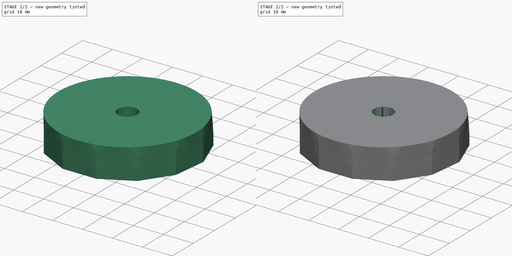
[diagram: build sequence overview — one tinted view per stage of 2, left to right]
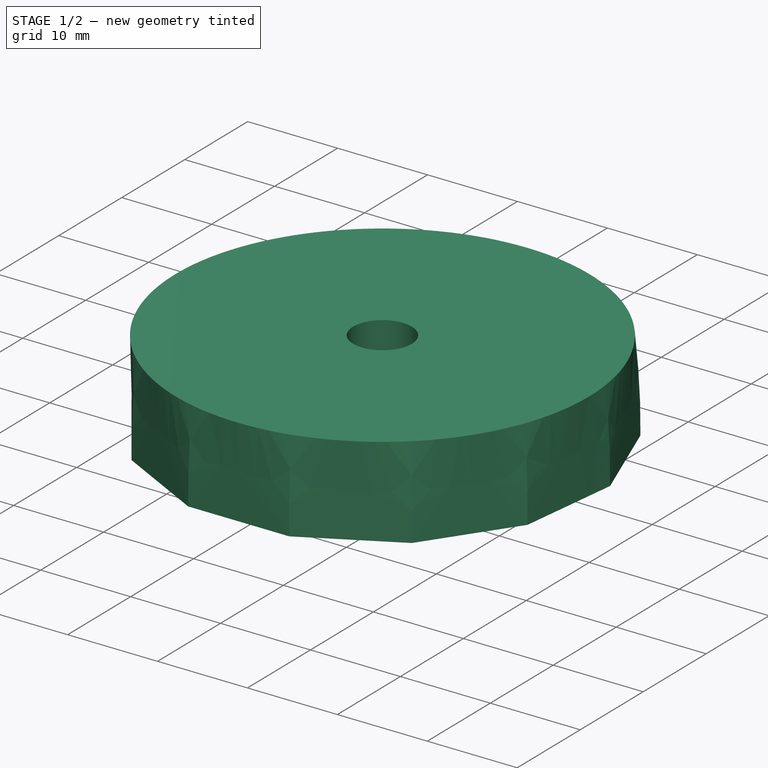
[diagram: stage 1 of 2 — iso view after this stage's code; geometry added in this stage tinted green]
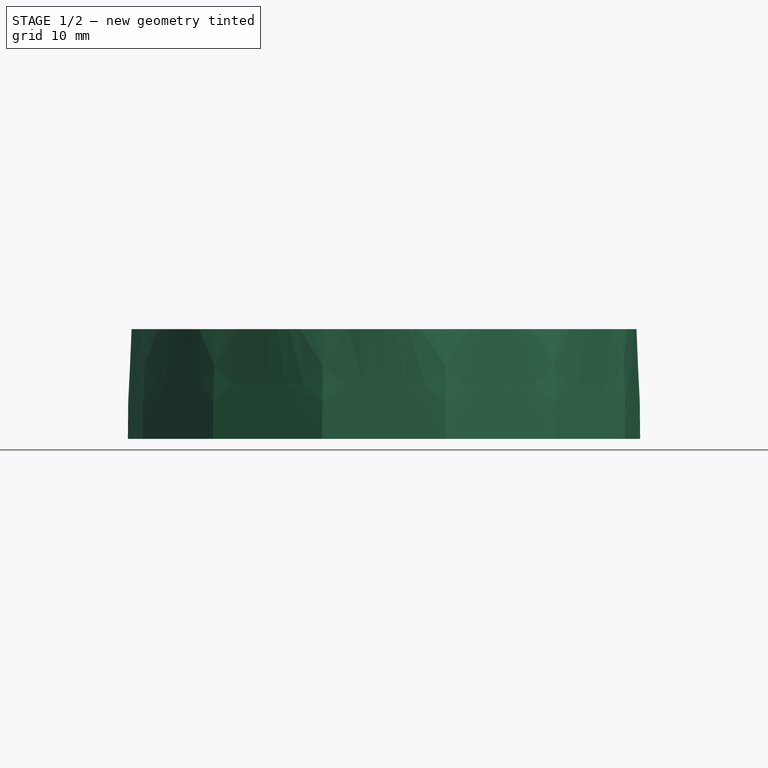
[diagram: stage 1 of 2 — front view after this stage's code; geometry added in this stage tinted green]
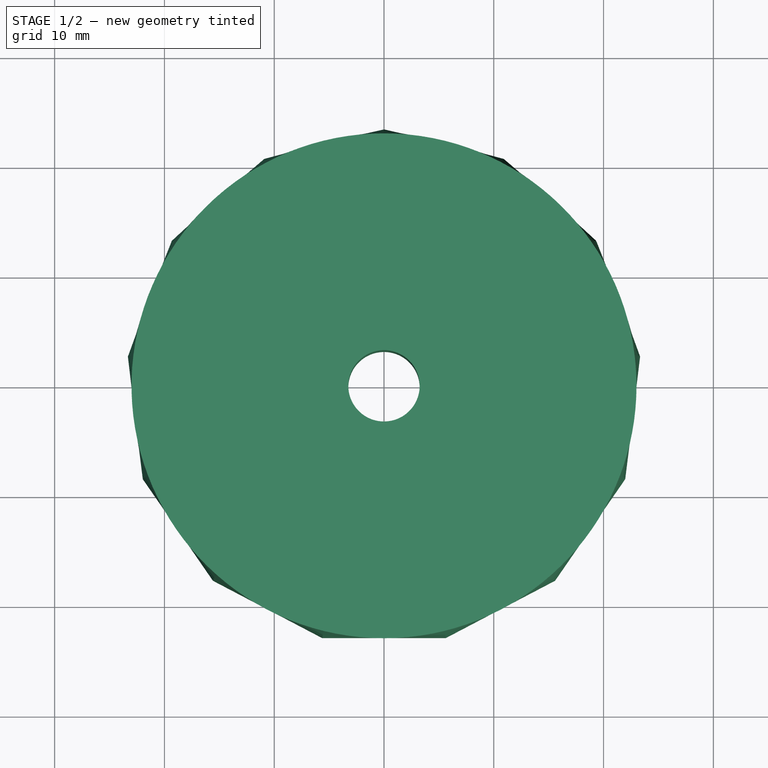
[diagram: stage 1 of 2 — top view after this stage's code; geometry added in this stage tinted green]
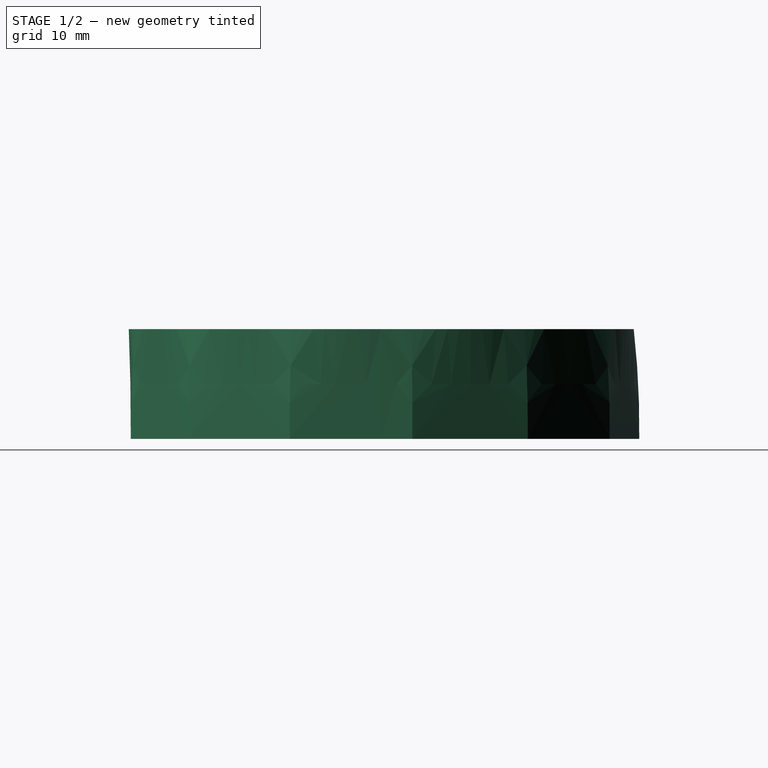
[diagram: stage 1 of 2 — right view after this stage's code; geometry added in this stage tinted green]
FCSTD DOCUMENT  (FreeCAD 0.21R33668 +7 (Git))
Label: volume knob
License: All rights reserved
LicenseURL: http://en.wikipedia.org/wiki/All_rights_reserved
objects: Sketcher::SketchObject×5, PartDesign::Plane×3, PartDesign::AdditiveLoft×1, PartDesign::Pocket×1, PartDesign::Pad×1, PartDesign::PolarPattern×1, PartDesign::Body×1, PartDesign::CoordinateSystem×1, App::Part×1
note: 17 computed .brp shape members not serialized (recipe doc carries the construction recipe); baked Part::Feature solids carry a one-line shape summary decoded from their .brp

FEATURE [Sketcher::SketchObject] Sketch
  FullyConstrained = true
  MapMode = 5
  Support = -> [XY_Plane]
  sketch-geometry (15):
    g0: Circle CenterX=0 CenterY=0 CenterZ=0 NormalX=0 NormalY=0 NormalZ=1 AngleXU=0 Radius=23.5
    g1: LineSegment StartX=0 StartY=23.5 StartZ=0 EndX=-10.921 EndY=20.8082 EndZ=0
    g2: LineSegment StartX=-10.921 StartY=20.8082 StartZ=0 EndX=-19.3401 EndY=13.3495 EndZ=0
    g3: LineSegment StartX=-19.3401 StartY=13.3495 StartZ=0 EndX=-23.3287 EndY=2.83261 EndZ=0
    g4: LineSegment StartX=-23.3287 StartY=2.83261 StartZ=0 EndX=-21.9729 EndY=-8.33321 EndZ=0
    g5: LineSegment StartX=-21.9729 StartY=-8.33321 StartZ=0 EndX=-15.5834 EndY=-17.59 EndZ=0
    g6: LineSegment StartX=-15.5834 StartY=-17.59 StartZ=0 EndX=-5.62392 EndY=-22.8171 EndZ=0
    g7: LineSegment StartX=-5.62392 StartY=-22.8171 StartZ=0 EndX=5.62392 EndY=-22.8171 EndZ=0
    g8: LineSegment StartX=5.62392 StartY=-22.8171 StartZ=0 EndX=15.5834 EndY=-17.59 EndZ=0
    g9: LineSegment StartX=15.5834 StartY=-17.59 StartZ=0 EndX=21.9729 EndY=-8.33321 EndZ=0
    g10: LineSegment StartX=21.9729 StartY=-8.33321 StartZ=0 EndX=23.3287 EndY=2.83261 EndZ=0
    g11: LineSegment StartX=23.3287 StartY=2.83261 StartZ=0 EndX=19.3401 EndY=13.3495 EndZ=0
    g12: LineSegment StartX=19.3401 StartY=13.3495 StartZ=0 EndX=10.921 EndY=20.8082 EndZ=0
    g13: LineSegment StartX=10.921 StartY=20.8082 StartZ=0 EndX=0 EndY=23.5 EndZ=0
    g14: Circle CenterX=0 CenterY=0 CenterZ=0 NormalX=0 NormalY=0 NormalZ=1 AngleXU=0 Radius=23.5
  constraints (32):
    c: Coincident(g0,g-1)
    c: Diameter(g0) = 47
    c: Coincident(g1,g2)
    c: Coincident(g2,g3)
    c: Coincident(g3,g4)
    c: Coincident(g4,g5)
    c: Coincident(g5,g6)
    c: Coincident(g6,g7)
    c: Coincident(g7,g8)
    c: Coincident(g8,g9)
    c: Coincident(g9,g10)
    c: Coincident(g10,g11)
    c: Coincident(g11,g12)
    c: Coincident(g12,g13)
    c: Coincident(g13,g1)
    c: Equal(g1, g2-g13) x12
    c: PointOnObject(g1,g14)
    c: PointOnObject(g2,g14)
    c: PointOnObject(g3,g14)
    c: PointOnObject(g4,g14)
    c: PointOnObject(g5,g14)
    c: PointOnObject(g6,g14)
    c: PointOnObject(g7,g14)
    c: PointOnObject(g8,g14)
    c: PointOnObject(g9,g14)
    c: PointOnObject(g10,g14)
    c: PointOnObject(g11,g14)
    c: PointOnObject(g12,g14)
    c: PointOnObject(g13,g14)
    c: Coincident(g14,g0)
    c: PointOnObject(g13,g0)
    c: PointOnObject(g1,g-2)
FEATURE [PartDesign::Plane] DatumPlane
  AttachmentOffset = pos=(0,0,2) rot=(0,0,1;0rad)
  Length = 60
  MapMode = 5
  Placement = pos=(0,0,2) rot=(0,0,1;0rad)
  ResizeMode = 0
  Support = -> [XY_Plane]
  Width = 60
FEATURE [Sketcher::SketchObject] Sketch001
  FullyConstrained = true
  MapMode = 5
  Placement = pos=(0,0,2) rot=(0,0,1;0rad)
  Support = -> [DatumPlane]
  sketch-geometry (15):
    g0: Circle CenterX=0 CenterY=0 CenterZ=0 NormalX=0 NormalY=0 NormalZ=1 AngleXU=0 Radius=23.5
    g1: LineSegment StartX=0 StartY=23.5 StartZ=0 EndX=-10.921 EndY=20.8082 EndZ=0
    g2: LineSegment StartX=-10.921 StartY=20.8082 StartZ=0 EndX=-19.3401 EndY=13.3495 EndZ=0
    g3: LineSegment StartX=-19.3401 StartY=13.3495 StartZ=0 EndX=-23.3287 EndY=2.83261 EndZ=0
    g4: LineSegment StartX=-23.3287 StartY=2.83261 StartZ=0 EndX=-21.9729 EndY=-8.33321 EndZ=0
    g5: LineSegment StartX=-21.9729 StartY=-8.33321 StartZ=0 EndX=-15.5834 EndY=-17.59 EndZ=0
    g6: LineSegment StartX=-15.5834 StartY=-17.59 StartZ=0 EndX=-5.62392 EndY=-22.8171 EndZ=0
    g7: LineSegment StartX=-5.62392 StartY=-22.8171 StartZ=0 EndX=5.62392 EndY=-22.8171 EndZ=0
    g8: LineSegment StartX=5.62392 StartY=-22.8171 StartZ=0 EndX=15.5834 EndY=-17.59 EndZ=0
    g9: LineSegment StartX=15.5834 StartY=-17.59 StartZ=0 EndX=21.9729 EndY=-8.33321 EndZ=0
    g10: LineSegment StartX=21.9729 StartY=-8.33321 StartZ=0 EndX=23.3287 EndY=2.83261 EndZ=0
    g11: LineSegment StartX=23.3287 StartY=2.83261 StartZ=0 EndX=19.3401 EndY=13.3495 EndZ=0
    g12: LineSegment StartX=19.3401 StartY=13.3495 StartZ=0 EndX=10.921 EndY=20.8082 EndZ=0
    g13: LineSegment StartX=10.921 StartY=20.8082 StartZ=0 EndX=0 EndY=23.5 EndZ=0
    g14: Circle CenterX=0 CenterY=0 CenterZ=0 NormalX=0 NormalY=0 NormalZ=1 AngleXU=0 Radius=23.5
  constraints (32):
    c: Coincident(g0,g-1)
    c: Diameter(g0) = 47
    c: Coincident(g1,g2)
    c: Coincident(g2,g3)
    c: Coincident(g3,g4)
    c: Coincident(g4,g5)
    c: Coincident(g5,g6)
    c: Coincident(g6,g7)
    c: Coincident(g7,g8)
    c: Coincident(g8,g9)
    c: Coincident(g9,g10)
    c: Coincident(g10,g11)
    c: Coincident(g11,g12)
    c: Coincident(g12,g13)
    c: Coincident(g13,g1)
    c: Equal(g1, g2-g13) x12
    c: PointOnObject(g1,g14)
    c: PointOnObject(g2,g14)
    c: PointOnObject(g3,g14)
    c: PointOnObject(g4,g14)
    c: PointOnObject(g5,g14)
    c: PointOnObject(g6,g14)
    c: PointOnObject(g7,g14)
    c: PointOnObject(g8,g14)
    c: PointOnObject(g9,g14)
    c: PointOnObject(g10,g14)
    c: PointOnObject(g11,g14)
    c: PointOnObject(g12,g14)
    c: PointOnObject(g13,g14)
    c: Coincident(g14,g-1)
    c: PointOnObject(g13,g0)
    c: PointOnObject(g1,g-2)
FEATURE [PartDesign::Plane] DatumPlane001
  AttachmentOffset = pos=(0,0,10) rot=(0,0,1;0rad)
  Length = 60
  MapMode = 5
  Placement = pos=(0,0,10) rot=(0,0,1;0rad)
  ResizeMode = 0
  Support = -> [XY_Plane]
  Width = 60
FEATURE [Sketcher::SketchObject] Sketch002
  FullyConstrained = true
  MapMode = 5
  Placement = pos=(0,0,10) rot=(0,0,1;0rad)
  Support = -> [DatumPlane001]
  sketch-geometry (1):
    g0: Circle CenterX=0 CenterY=0 CenterZ=0 NormalX=0 NormalY=0 NormalZ=1 AngleXU=0 Radius=23
  constraints (2):
    c: Coincident(g0,g-1)
    c: Diameter(g0) = 46
FEATURE [PartDesign::AdditiveLoft] AdditiveLoft
  Closed = false
  Profile = -> Sketch
  Ruled = false
  Sections = -> [Sketch001,Sketch002]
FEATURE [Sketcher::SketchObject] Sketch003
  FullyConstrained = true
  MapMode = 5
  Support = -> [XY_Plane]
  sketch-geometry (1):
    g0: Circle CenterX=0 CenterY=0 CenterZ=0 NormalX=0 NormalY=0 NormalZ=1 AngleXU=0 Radius=3.25
  constraints (2):
    c: Coincident(g0,g-1)
    c: Diameter(g0) = 6.5
FEATURE [PartDesign::Pocket] Pocket
  BaseFeature = -> AdditiveLoft
  Direction = (0,0,-1)
  Length = 10
  Length2 = 100
  Profile = -> Sketch003
  ReferenceAxis = -> Sketch003 [N_Axis]
  Reversed = true
  Type = 0
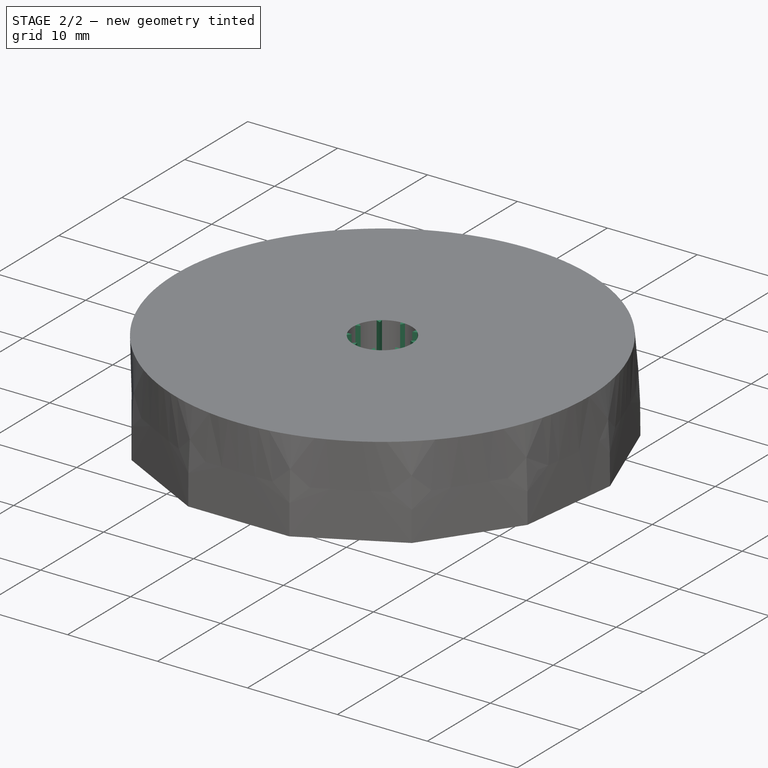
[diagram: stage 2 of 2 — iso view after this stage's code; geometry added in this stage tinted green]
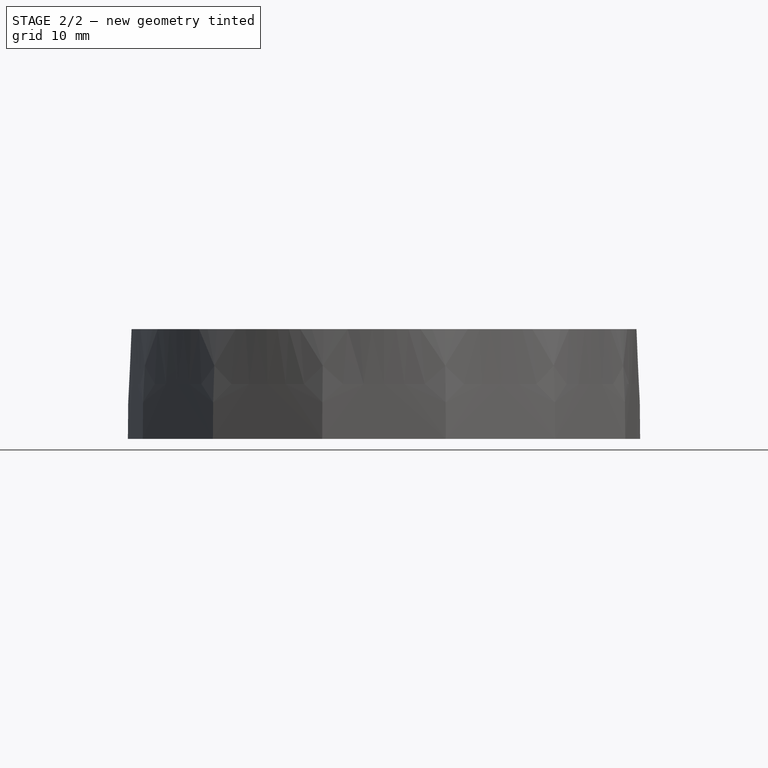
[diagram: stage 2 of 2 — front view after this stage's code; geometry added in this stage tinted green]
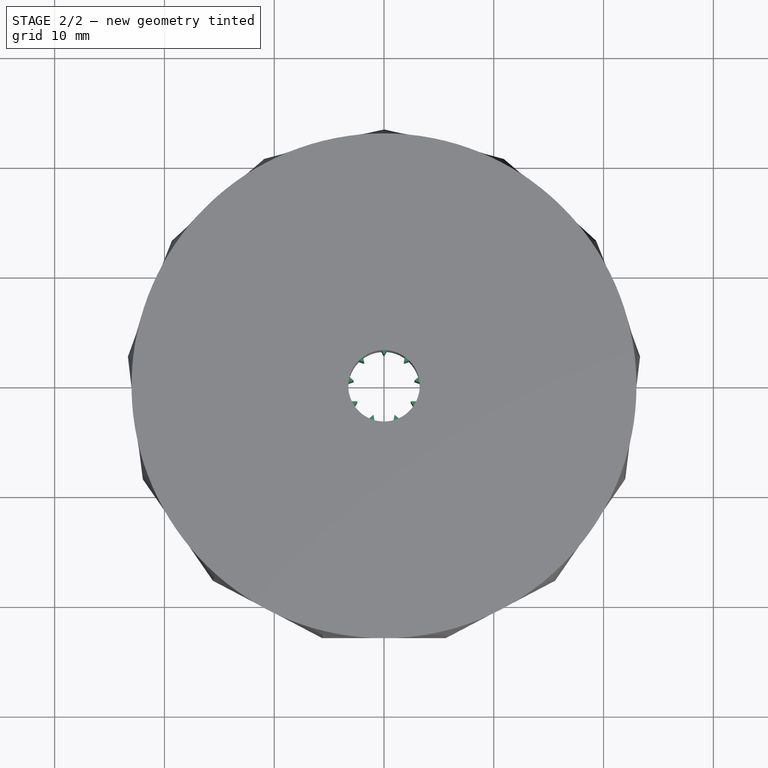
[diagram: stage 2 of 2 — top view after this stage's code; geometry added in this stage tinted green]
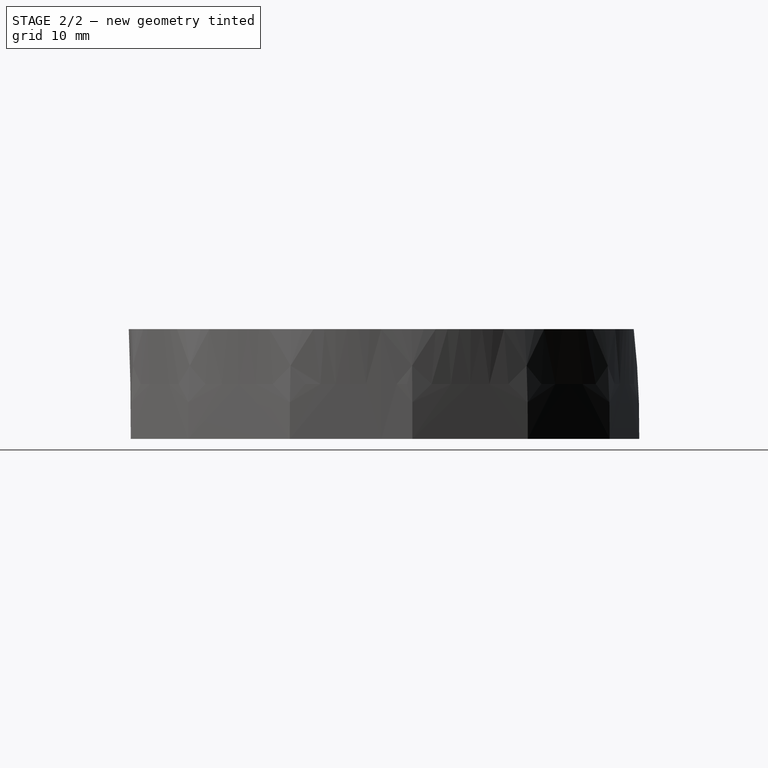
[diagram: stage 2 of 2 — right view after this stage's code; geometry added in this stage tinted green]
FEATURE [Sketcher::SketchObject] Sketch004
  FullyConstrained = true
  MapMode = 5
  Support = -> [XY_Plane]
  sketch-geometry (6):
    g0: Circle CenterX=0 CenterY=0 CenterZ=0 NormalX=0 NormalY=0 NormalZ=1 AngleXU=0 Radius=3.255
    g1: LineSegment StartX=-0.25 StartY=3.24539 StartZ=0 EndX=0 EndY=2.81237 EndZ=0
    g2: LineSegment StartX=0 StartY=2.81237 StartZ=0 EndX=0.25 EndY=3.24539 EndZ=0
    g3: LineSegment StartX=0.25 StartY=3.24539 StartZ=0 EndX=0 EndY=3.6784 EndZ=0
    g4: LineSegment StartX=0 StartY=3.6784 StartZ=0 EndX=-0.25 EndY=3.24539 EndZ=0
    g5: LineSegment StartX=-0.25 StartY=3.24539 StartZ=0 EndX=0.25 EndY=3.24539 EndZ=0
  constraints (15):
    c: Coincident(g0,g-1)
    c: Diameter(g0) = 6.51
    c: PointOnObject(g1,g0)
    c: PointOnObject(g1,g-2)
    c: Coincident(g1,g2)
    c: Coincident(g2,g3)
    c: PointOnObject(g3,g-2)
    c: Coincident(g3,g4)
    c: Coincident(g4,g1)
    c: Symmetric(g1,g2,g-2)
    c: Coincident(g5,g1)
    c: Coincident(g5,g2)
    c: Equal(g5,g1)
    c: Equal(g2,g3)
    c: Distance(g2) = 0.5
FEATURE [PartDesign::Pad] Pad
  BaseFeature = -> Pocket
  Direction = (0,0,1)
  Length = 10
  Length2 = 100
  Profile = -> Sketch004
  Type = 0
FEATURE [PartDesign::PolarPattern] PolarPattern
  Angle = 360
  Axis = -> Sketch004 [N_Axis]
  BaseFeature = -> Pad
  Occurrences = 9
  Originals = -> [Pad]
FEATURE [PartDesign::Plane] DatumPlane002
  AttachmentOffset = pos=(0,0,7) rot=(0,0,1;0rad)
  Length = 60
  MapMode = 5
  Placement = pos=(0,0,7) rot=(0,0,1;0rad)
  ResizeMode = 0
  Support = -> [XY_Plane]
  Width = 60
FEATURE [PartDesign::Body] Body  label="knob"
  Group = -> [Sketch,DatumPlane,Sketch001,DatumPlane001,DatumPlane002,Sketch002,AdditiveLoft,Sketch003,Pocket,Sketch004,Pad,PolarPattern]
  Origin = -> Origin
  Tip = -> PolarPattern
FEATURE [PartDesign::CoordinateSystem] LCS_0
  AttacherType = Attacher::AttachEngine3D
  MapMode = 2
  Support = -> [X_Axis001]
FEATURE [App::Part] knob  label="knob001"
  Group = -> [LCS_0,Body]
  Origin = -> Origin001
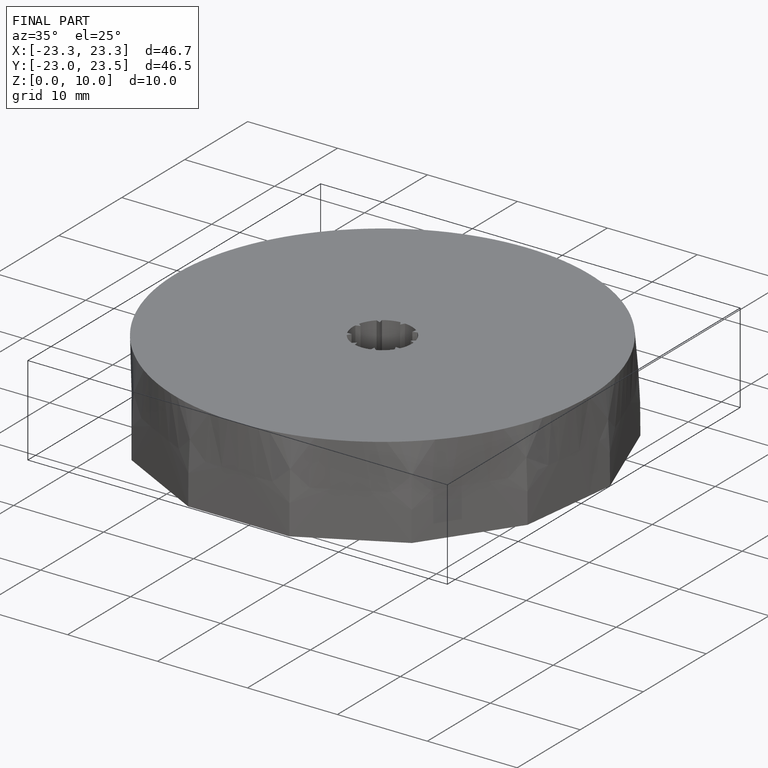
[diagram: finished part — iso view with bounding-box wireframe]
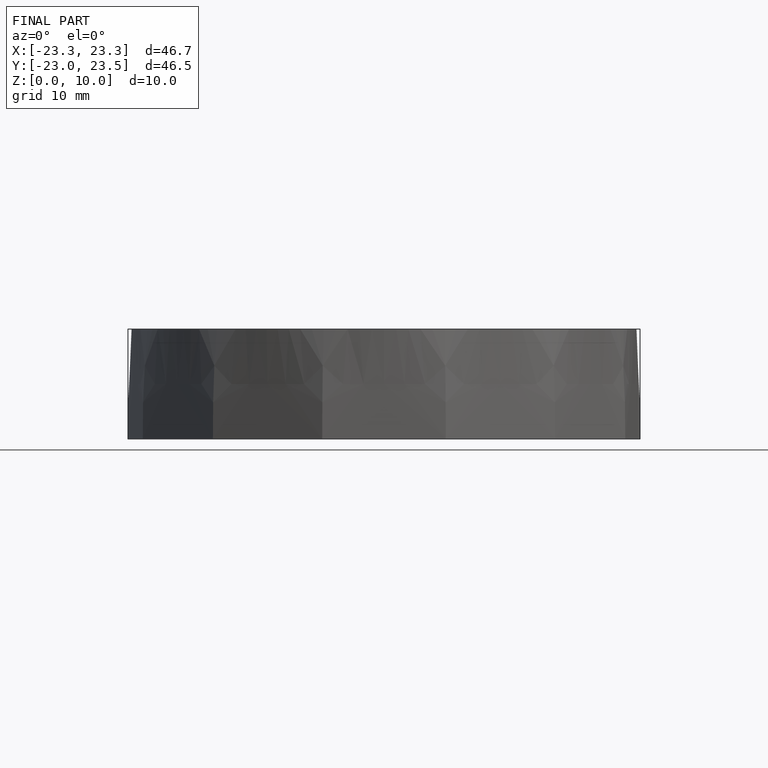
[diagram: finished part — front view with bounding-box wireframe]
